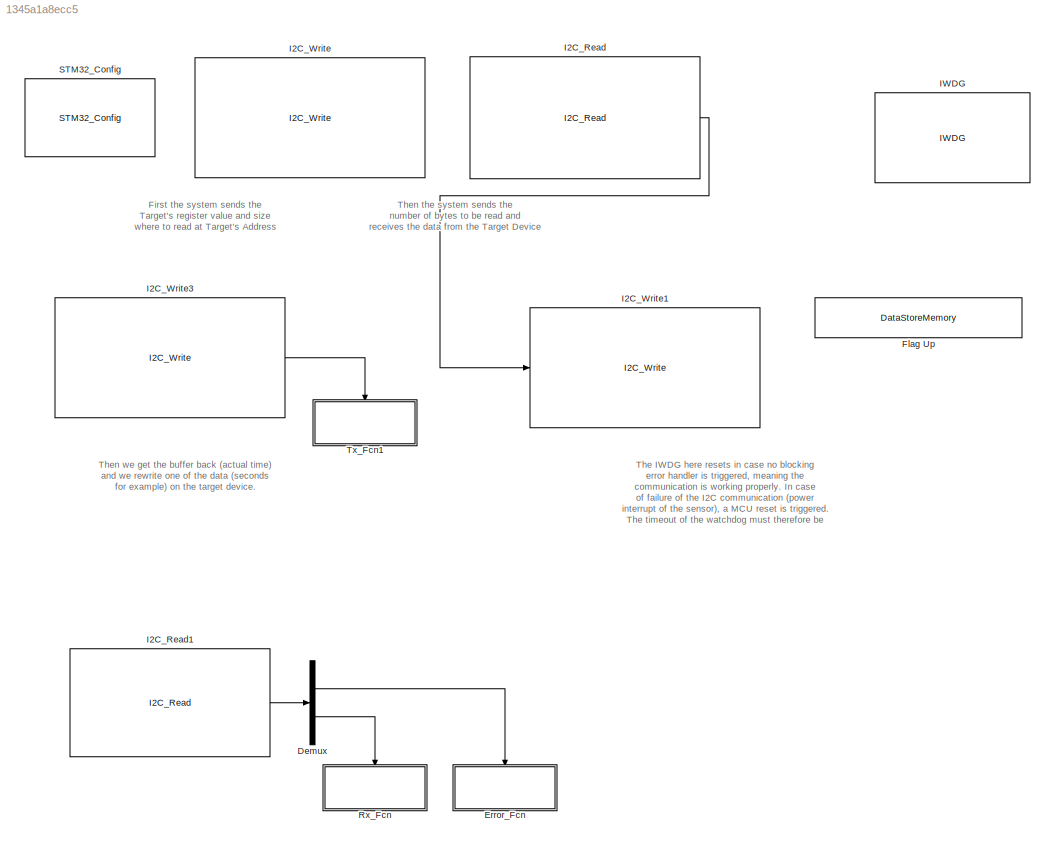
MODEL slx_1345a1a8ecc5
KIND model
CONFIG AbsTol = auto
CONFIG EnableMultiTasking = on
CONFIG FixedStep = 0.5
CONFIG MaxStep = auto
CONFIG MinStep = auto
CONFIG RelTol = 1e-3
CONFIG SampleTimeConstraint = Unconstrained
CONFIG Solver = FixedStepDiscrete
CONFIG SolverName = FixedStepDiscrete
CONFIG StartTime = 0.0
CONFIG StopTime = 10.0
BLOCK [Demux] Demux
  DisplayOption = bar
  Outputs = 2
  Ports = [1, 2]
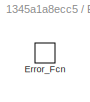
BLOCK [SubSystem] Error_Fcn
  Ports = [0, 0, 0, 1]
  RequestExecContextInheritance = off
  TreatAsAtomicUnit = on
BLOCK [TriggerPort] Error_Fcn/Error_Fcn
  Ports = []
  StatesWhenEnabling = held
  TriggerType = function-call
  VariantControl = Variant
BLOCK [DataStoreMemory] Flag Up
  DataStoreName = Tx_Complete
  OutDataTypeStr = boolean
  ReadBeforeWriteMsg = warning
  ShowAdditionalParam = off
  SignalType = real
  WriteAfterReadMsg = warning
  WriteAfterWriteMsg = warning
BLOCK [Reference] I2C_Read  REF=I2C_Lib/I2C_Read
  Ports = [0, 1]
  Priority = 1
  SourceBlock = I2C_Lib/I2C_Read
  SourceProductName = Target Support Package - STM32 Adapter
  SourceType = I2C_Read
BLOCK [Reference] I2C_Read1  REF=I2C_Lib/I2C_Read
  Ports = [0, 1]
  SourceBlock = I2C_Lib/I2C_Read
  SourceProductName = Target Support Package - STM32 Adapter
  SourceType = I2C_Read
BLOCK [Reference] I2C_Write  REF=I2C_Lib/I2C_Write
  Ports = []
  Priority = 0
  SourceBlock = I2C_Lib/I2C_Write
  SourceProductName = Target Support Package - STM32 Adapter
  SourceType = I2C_Write
BLOCK [Reference] I2C_Write1  REF=I2C_Lib/I2C_Write
  Ports = [1]
  Priority = 3
  SourceBlock = I2C_Lib/I2C_Write
  SourceProductName = Target Support Package - STM32 Adapter
  SourceType = I2C_Write
BLOCK [Reference] I2C_Write3  REF=I2C_Lib/I2C_Write
  Ports = [0, 1]
  Priority = 2
  SourceBlock = I2C_Lib/I2C_Write
  SourceProductName = Target Support Package - STM32 Adapter
  SourceType = I2C_Write
BLOCK [Reference] IWDG  REF=WDG_Lib/IWDG
  Ports = []
  SourceBlock = WDG_Lib/IWDG
  SourceProductName = Target Support Package - STM32 Adapter
  SourceType = IWDG
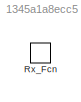
BLOCK [SubSystem] Rx_Fcn
  Ports = [0, 0, 0, 1]
  RequestExecContextInheritance = off
  TreatAsAtomicUnit = on
BLOCK [TriggerPort] Rx_Fcn/Rx_Fcn
  Ports = []
  StatesWhenEnabling = held
  TriggerType = function-call
  VariantControl = Variant
BLOCK [Reference] STM32_Config  REF=STM32_Config_Lib/STM32_Config
  Ports = []
  SourceBlock = STM32_Config_Lib/STM32_Config
  SourceProductName = Target Support Package - STM32 Adapter
  SourceType = STM32_Config
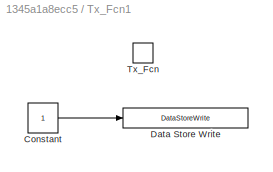
BLOCK [SubSystem] Tx_Fcn1
  Ports = [0, 0, 0, 1]
  RequestExecContextInheritance = off
  TreatAsAtomicUnit = on
BLOCK [Constant] Tx_Fcn1/Constant
  OutDataTypeStr = boolean
BLOCK [DataStoreWrite] Tx_Fcn1/Data Store Write
  DataStoreName = Tx_Complete
  Ports = [1]
BLOCK [TriggerPort] Tx_Fcn1/Tx_Fcn
  Ports = []
  StatesWhenEnabling = held
  TriggerType = function-call
  VariantControl = Variant
ANNOTATION (root): First the system sends the Target's register value and size where to read at Target's Address
ANNOTATION (root): The IWDG here resets in case no blocking error handler is triggered, meaning the communication is working properly. In case of failure of the I2C communication (power interrupt of the sensor), a MCU reset is triggered. The timeout of the watchdog must therefore be bigger than the time step imposed by the solver (see Model Configuration Parameters).
ANNOTATION (root): Then the system sends the number of bytes to be read and receives the data from the Target Device
ANNOTATION (root): Then we get the buffer back (actual time) and we rewrite one of the data (seconds for example) on the target device.
LINE Demux:1 -> Error_Fcn:trigger
LINE Demux:2 -> Rx_Fcn:trigger
LINE I2C_Read1:1 -> Demux:1
LINE I2C_Read:1 -> I2C_Write1:1
LINE I2C_Write3:1 -> Tx_Fcn1:trigger
LINE Tx_Fcn1/Constant:1 -> Tx_Fcn1/Data Store Write:1
